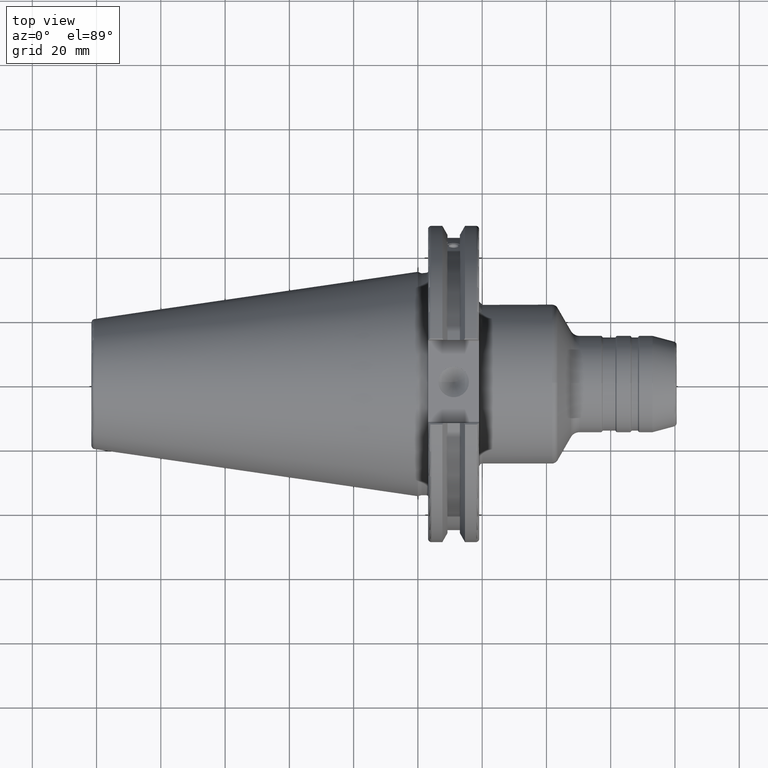
[diagram: clean part render]
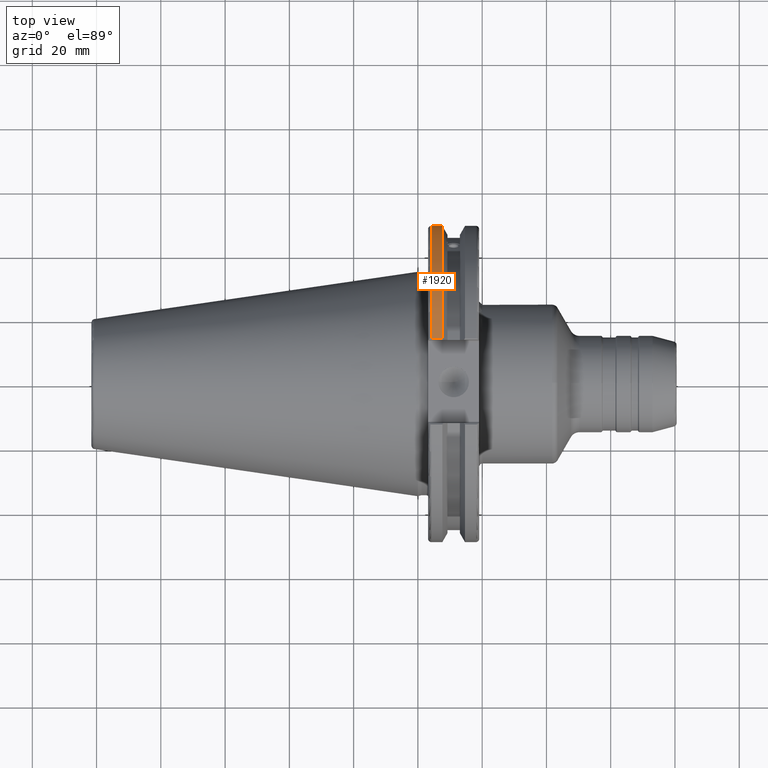
[diagram: same view with one face highlighted and labeled with its STEP entity id]
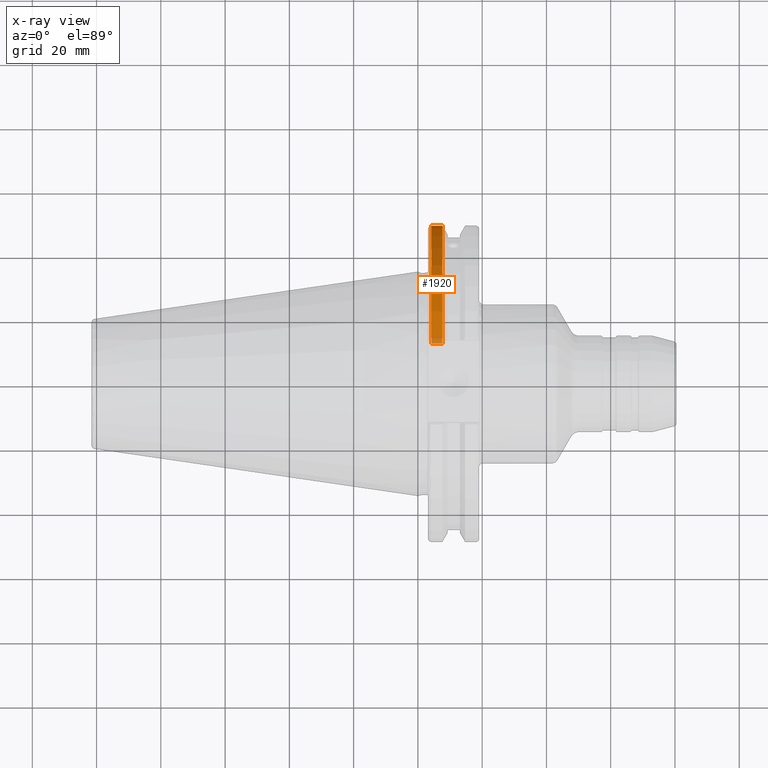
[diagram: x-ray of the same camera — body ghosted, the highlighted face saturated]
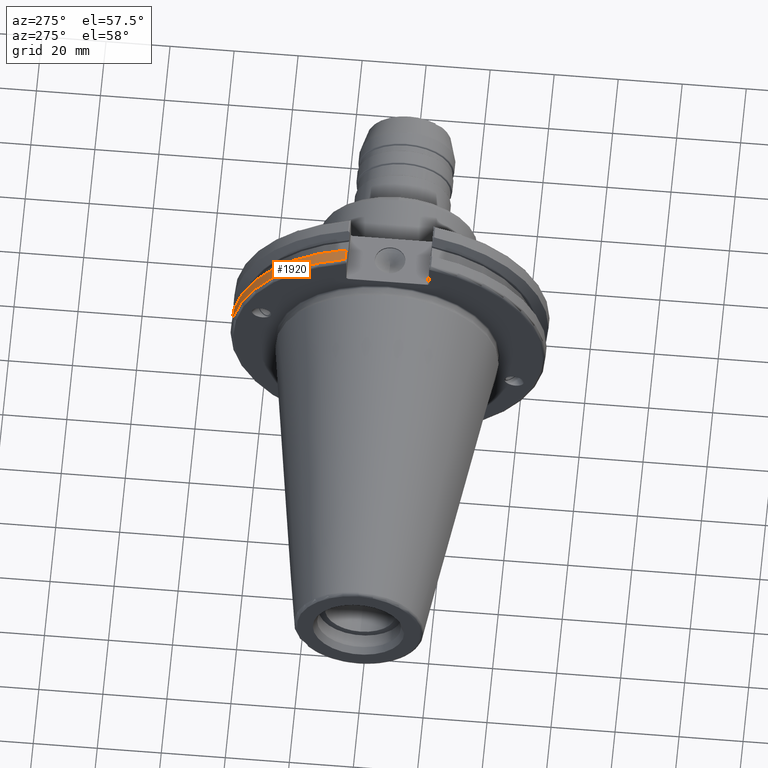
[diagram: same view with one face highlighted and labeled with its STEP entity id]
A machine part, top view. The second image highlights one B-rep face of the part: STEP entity #1920.
The next image is the same camera in x-ray: the body ghosted, the highlighted face saturated — about 5% of this face is hidden behind the body in this view.
A second angle (auxiliary view) of the same face is appended — the face is thin or edge-on in the first view.
In plain terms, the highlighted cylindrical surface (partial cylindrical patch) has radius 49.2125 mm, axis along (1, 0, 0).
Its self-contained STEP definition (entity closure, byte-faithful):
#254=FACE_OUTER_BOUND('',#380,.T.);
#380=EDGE_LOOP('',(#1713,#1714,#1715,#1716));
#488=LINE('',#3762,#592);
#499=LINE('',#3804,#603);
#592=VECTOR('',#2672,10.);
#603=VECTOR('',#2719,10.);
#721=CIRCLE('',#2152,49.2125);
#728=CIRCLE('',#2172,49.2125);
#917=VERTEX_POINT('',#3735);
#918=VERTEX_POINT('',#3744);
#919=VERTEX_POINT('',#3761);
#926=VERTEX_POINT('',#3803);
#1180=EDGE_CURVE('',#917,#918,#721,.T.);
#1183=EDGE_CURVE('',#918,#919,#488,.T.);
#1202=EDGE_CURVE('',#926,#917,#499,.T.);
#1203=EDGE_CURVE('',#919,#926,#728,.T.);
#1713=ORIENTED_EDGE('',*,*,#1180,.F.);
#1714=ORIENTED_EDGE('',*,*,#1202,.F.);
#1715=ORIENTED_EDGE('',*,*,#1203,.F.);
#1716=ORIENTED_EDGE('',*,*,#1183,.F.);
#1826=CYLINDRICAL_SURFACE('',#2171,49.2125);
#1920=ADVANCED_FACE('',(#254),#1826,.T.);
#2152=AXIS2_PLACEMENT_3D('',#3745,#2668,#2669);
#2171=AXIS2_PLACEMENT_3D('',#3802,#2717,#2718);
#2172=AXIS2_PLACEMENT_3D('',#3805,#2720,#2721);
#2668=DIRECTION('center_axis',(-1.,0.,0.));
#2669=DIRECTION('ref_axis',(0.,1.,-6.12323399573677E-17));
#2672=DIRECTION('',(1.,0.,0.));
#2717=DIRECTION('center_axis',(1.,0.,0.));
#2718=DIRECTION('ref_axis',(0.,1.,0.));
#2719=DIRECTION('',(-1.,0.,0.));
#2720=DIRECTION('center_axis',(1.,0.,0.));
#2721=DIRECTION('ref_axis',(0.,0.,-1.));
#3735=CARTESIAN_POINT('',(4.175,13.4317035994433,47.3440544806494));
#3744=CARTESIAN_POINT('',(4.175,13.4317035994433,-47.3440544806494));
#3745=CARTESIAN_POINT('Origin',(4.175,0.,0.));
#3761=CARTESIAN_POINT('',(7.60799096595127,13.4317035994433,-47.3440544806494));
#3762=CARTESIAN_POINT('',(5.39149548297564,13.4317035994433,-47.3440544806494));
#3802=CARTESIAN_POINT('Origin',(5.39149548297564,0.,0.));
#3803=CARTESIAN_POINT('',(7.60799096595127,13.4317035994433,47.3440544806494));
#3804=CARTESIAN_POINT('',(5.39149548297564,13.4317035994433,47.3440544806494));
#3805=CARTESIAN_POINT('Origin',(7.60799096595127,0.,0.));